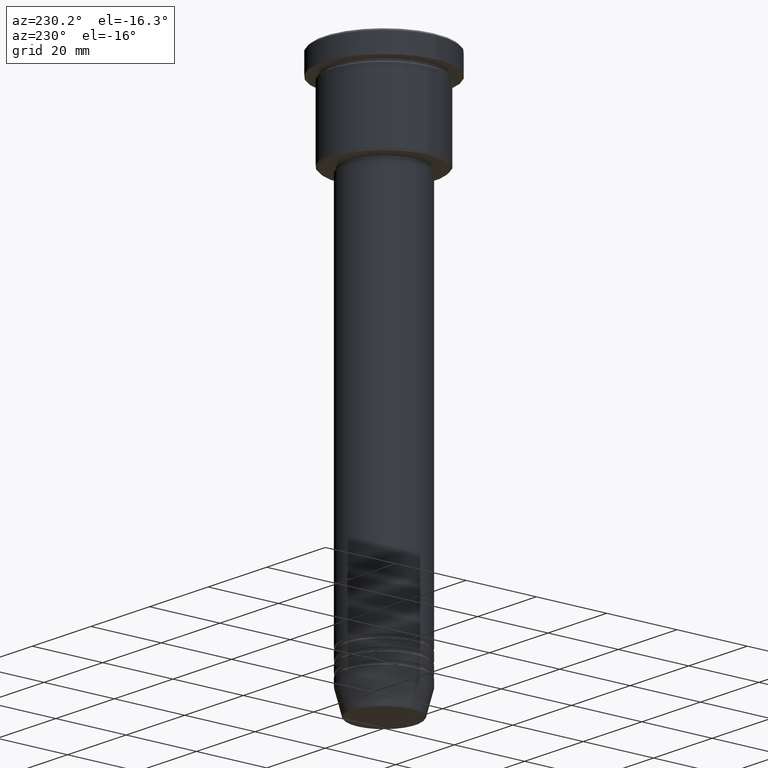
[diagram: clean part render]
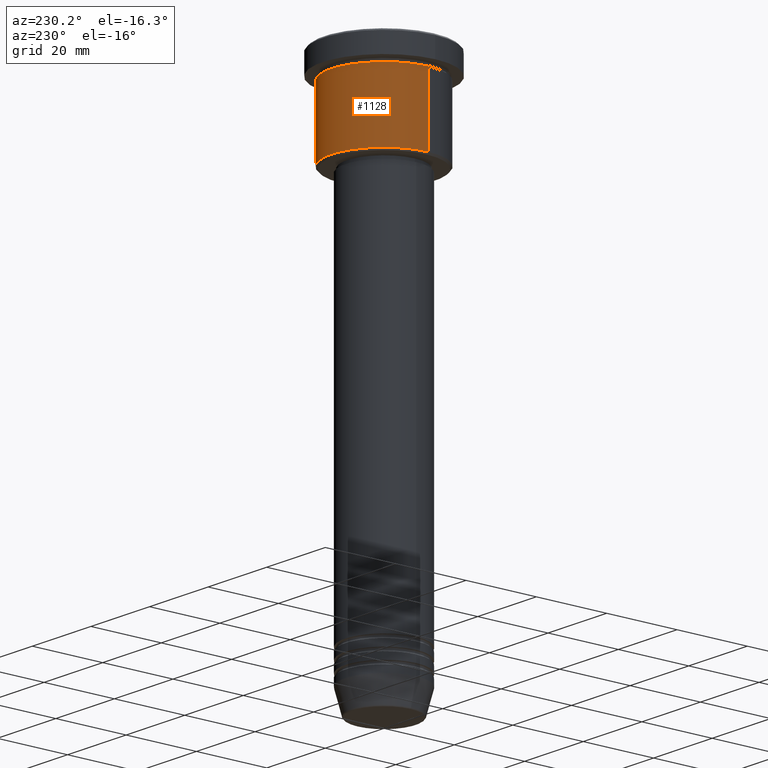
[diagram: same view with one face highlighted and labeled with its STEP entity id]
A machine part, auxiliary view. The second image highlights one B-rep face of the part: STEP entity #1128.
In plain terms, the highlighted cylindrical surface (partial cylindrical patch) has radius 15 mm, axis along (-0, -0, 1).
Its self-contained STEP definition (entity closure, byte-faithful):
#26 = EDGE_CURVE ( 'NONE', #1031, #702, #456, .T. ) ;
#81 = CARTESIAN_POINT ( 'NONE',  ( -15.00000000000000000, 1.836970198721029589E-15, 0.000000000000000000 ) ) ;
#96 = ORIENTED_EDGE ( 'NONE', *, *, #26, .F. ) ;
#165 = DIRECTION ( 'NONE',  ( 1.000000000000000000, 0.000000000000000000, 0.000000000000000000 ) ) ;
#174 = CARTESIAN_POINT ( 'NONE',  ( 15.00000000000000000, 0.000000000000000000, -6.999999999999995559 ) ) ;
#175 = AXIS2_PLACEMENT_3D ( 'NONE', #504, #857, #671 ) ;
#241 = VERTEX_POINT ( 'NONE', #1180 ) ;
#269 = DIRECTION ( 'NONE',  ( -0.000000000000000000, -0.000000000000000000, 1.000000000000000000 ) ) ;
#350 = CARTESIAN_POINT ( 'NONE',  ( 0.000000000000000000, 0.000000000000000000, -26.49999999999995737 ) ) ;
#367 = CARTESIAN_POINT ( 'NONE',  ( 0.000000000000000000, 0.000000000000000000, 0.000000000000000000 ) ) ;
#437 = ORIENTED_EDGE ( 'NONE', *, *, #1070, .T. ) ;
#445 = CARTESIAN_POINT ( 'NONE',  ( 15.00000000000000000, 0.000000000000000000, 0.000000000000000000 ) ) ;
#456 = CIRCLE ( 'NONE', #175, 15.00000000000000000 ) ;
#504 = CARTESIAN_POINT ( 'NONE',  ( 0.000000000000000000, 0.000000000000000000, -6.999999999999995559 ) ) ;
#525 = LINE ( 'NONE', #445, #558 ) ;
#558 = VECTOR ( 'NONE', #799, 1000.000000000000000 ) ;
#560 = ORIENTED_EDGE ( 'NONE', *, *, #1137, .F. ) ;
#577 = AXIS2_PLACEMENT_3D ( 'NONE', #367, #734, #165 ) ;
#610 = EDGE_CURVE ( 'NONE', #659, #702, #1009, .T. ) ;
#635 = DIRECTION ( 'NONE',  ( -0.000000000000000000, -0.000000000000000000, 1.000000000000000000 ) ) ;
#659 = VERTEX_POINT ( 'NONE', #1172 ) ;
#671 = DIRECTION ( 'NONE',  ( 1.000000000000000000, 0.000000000000000000, 0.000000000000000000 ) ) ;
#702 = VERTEX_POINT ( 'NONE', #1004 ) ;
#713 = CYLINDRICAL_SURFACE ( 'NONE', #577, 15.00000000000000000 ) ;
#734 = DIRECTION ( 'NONE',  ( -0.000000000000000000, -0.000000000000000000, 1.000000000000000000 ) ) ;
#799 = DIRECTION ( 'NONE',  ( -0.000000000000000000, -0.000000000000000000, 1.000000000000000000 ) ) ;
#857 = DIRECTION ( 'NONE',  ( -0.000000000000000000, -0.000000000000000000, 1.000000000000000000 ) ) ;
#884 = CIRCLE ( 'NONE', #1096, 15.00000000000000000 ) ;
#890 = EDGE_LOOP ( 'NONE', ( #437, #1025, #96, #560 ) ) ;
#1004 = CARTESIAN_POINT ( 'NONE',  ( -15.00000000000000000, 1.836970198721029589E-15, -6.999999999999995559 ) ) ;
#1008 = FACE_OUTER_BOUND ( 'NONE', #890, .T. ) ;
#1009 = LINE ( 'NONE', #81, #1111 ) ;
#1025 = ORIENTED_EDGE ( 'NONE', *, *, #610, .T. ) ;
#1031 = VERTEX_POINT ( 'NONE', #174 ) ;
#1070 = EDGE_CURVE ( 'NONE', #241, #659, #884, .T. ) ;
#1096 = AXIS2_PLACEMENT_3D ( 'NONE', #350, #269, #1098 ) ;
#1098 = DIRECTION ( 'NONE',  ( -1.000000000000000000, 0.000000000000000000, 0.000000000000000000 ) ) ;
#1111 = VECTOR ( 'NONE', #635, 1000.000000000000000 ) ;
#1128 = ADVANCED_FACE ( 'NONE', ( #1008 ), #713, .T. ) ;
#1137 = EDGE_CURVE ( 'NONE', #241, #1031, #525, .T. ) ;
#1172 = CARTESIAN_POINT ( 'NONE',  ( -15.00000000000000000, 1.836970198721029589E-15, -26.49999999999995737 ) ) ;
#1180 = CARTESIAN_POINT ( 'NONE',  ( 15.00000000000000000, 0.000000000000000000, -26.49999999999995737 ) ) ;